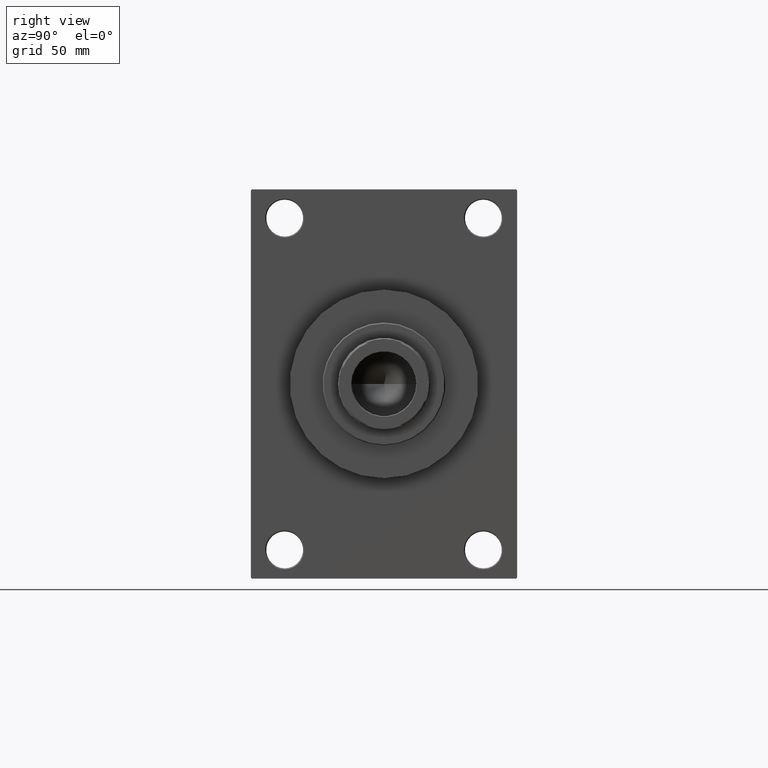
[diagram: clean part render]
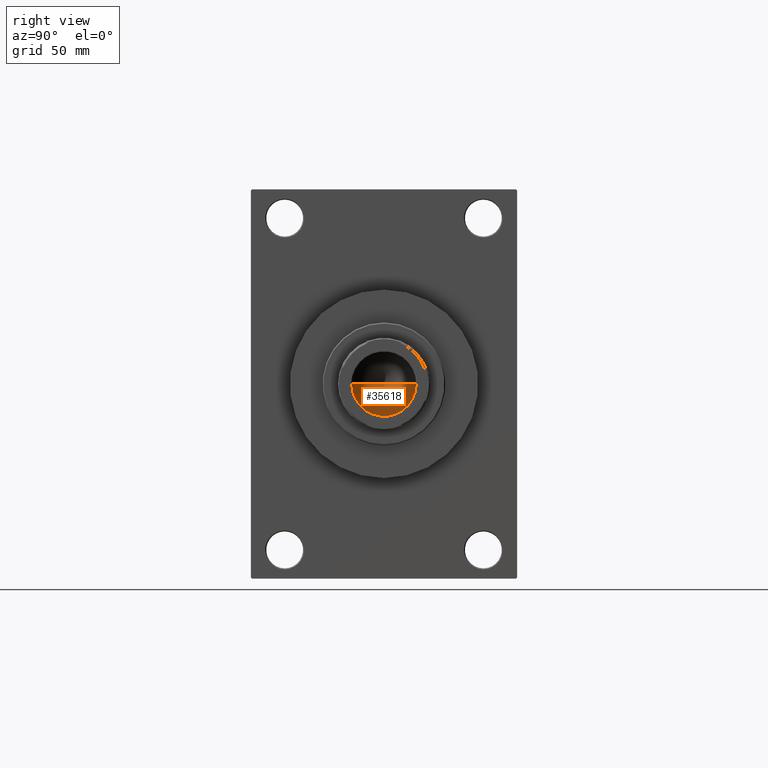
[diagram: same view with one face highlighted and labeled with its STEP entity id]
A machine part, right view. The second image highlights one B-rep face of the part: STEP entity #35618.
In plain terms, the highlighted conical surface has half-angle 59 deg.
Its self-contained STEP definition (entity closure, byte-faithful):
#649 = FACE_OUTER_BOUND ( 'NONE', #26049, .T. ) ;
#3713 = AXIS2_PLACEMENT_3D ( 'NONE', #8366, #37779, #4742 ) ;
#4430 = VERTEX_POINT ( 'NONE', #6479 ) ;
#4675 = CARTESIAN_POINT ( 'NONE',  ( 0.000000000000000000, 0.000000000000000000, 152.9999999999999716 ) ) ;
#4742 = DIRECTION ( 'NONE',  ( 1.000000000000000000, 0.000000000000000000, 0.000000000000000000 ) ) ;
#6479 = CARTESIAN_POINT ( 'NONE',  ( -15.74999999999998934, 1.928818708657080161E-15, 152.9999999999999716 ) ) ;
#7456 = DIRECTION ( 'NONE',  ( 0.8571673007021118895, 0.000000000000000000, 0.5150380749100549327 ) ) ;
#7831 = ORIENTED_EDGE ( 'NONE', *, *, #24882, .T. ) ;
#8366 = CARTESIAN_POINT ( 'NONE',  ( 0.000000000000000000, 0.000000000000000000, 152.9999999999999716 ) ) ;
#11670 = DIRECTION ( 'NONE',  ( 1.000000000000000000, 0.000000000000000000, 0.000000000000000000 ) ) ;
#14463 = LINE ( 'NONE', #33267, #37292 ) ;
#14916 = AXIS2_PLACEMENT_3D ( 'NONE', #4675, #23723, #11670 ) ;
#14967 = LINE ( 'NONE', #28929, #42475 ) ;
#16224 = CARTESIAN_POINT ( 'NONE',  ( 15.74999999999998934, 0.000000000000000000, 152.9999999999999716 ) ) ;
#16890 = EDGE_CURVE ( 'NONE', #20565, #4430, #14967, .T. ) ;
#17579 = ORIENTED_EDGE ( 'NONE', *, *, #16890, .F. ) ;
#20565 = VERTEX_POINT ( 'NONE', #24349 ) ;
#23723 = DIRECTION ( 'NONE',  ( -0.000000000000000000, -0.000000000000000000, 1.000000000000000000 ) ) ;
#24349 = CARTESIAN_POINT ( 'NONE',  ( -1.584115414415908206E-14, 0.000000000000000000, 143.5364452503158930 ) ) ;
#24882 = EDGE_CURVE ( 'NONE', #31343, #4430, #27986, .T. ) ;
#26049 = EDGE_LOOP ( 'NONE', ( #17579, #44886, #7831 ) ) ;
#26268 = EDGE_CURVE ( 'NONE', #20565, #31343, #14463, .T. ) ;
#27986 = CIRCLE ( 'NONE', #14916, 15.74999999999998934 ) ;
#28929 = CARTESIAN_POINT ( 'NONE',  ( -15.74999999999998934, 1.928818708657080161E-15, 152.9999999999999716 ) ) ;
#31343 = VERTEX_POINT ( 'NONE', #16224 ) ;
#33267 = CARTESIAN_POINT ( 'NONE',  ( 15.74999999999998934, 0.000000000000000000, 152.9999999999999716 ) ) ;
#35618 = ADVANCED_FACE ( 'NONE', ( #649 ), #38402, .F. ) ;
#35947 = DIRECTION ( 'NONE',  ( -0.8571673007021118895, 1.049727191138618079E-16, 0.5150380749100549327 ) ) ;
#37292 = VECTOR ( 'NONE', #7456, 1000.000000000000000 ) ;
#37779 = DIRECTION ( 'NONE',  ( -0.000000000000000000, -0.000000000000000000, 1.000000000000000000 ) ) ;
#38402 = CONICAL_SURFACE ( 'NONE', #3713, 15.74999999999998934, 1.029744258676653645 ) ;
#42475 = VECTOR ( 'NONE', #35947, 1000.000000000000000 ) ;
#44886 = ORIENTED_EDGE ( 'NONE', *, *, #26268, .T. ) ;